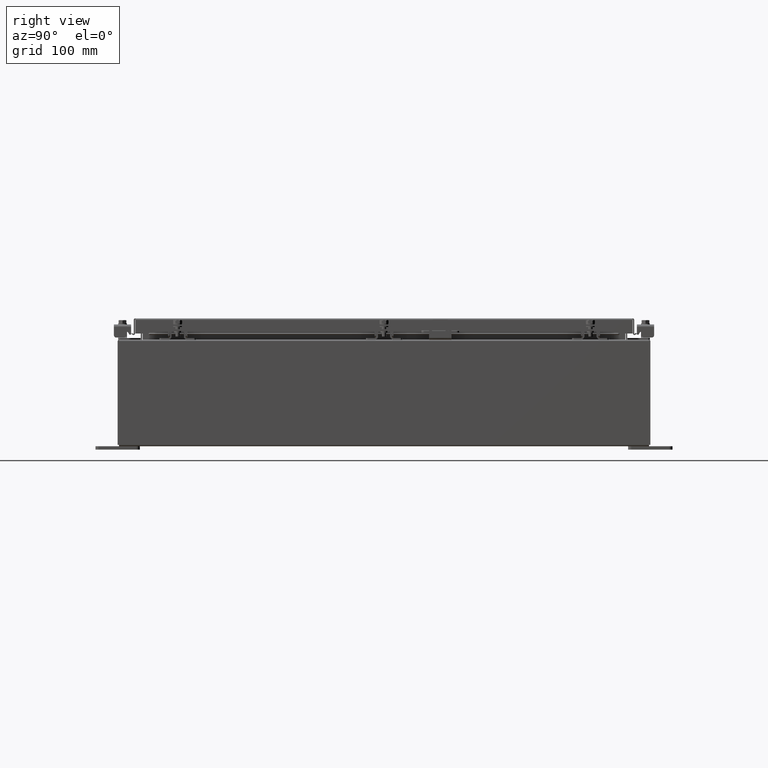
[diagram: clean part render]
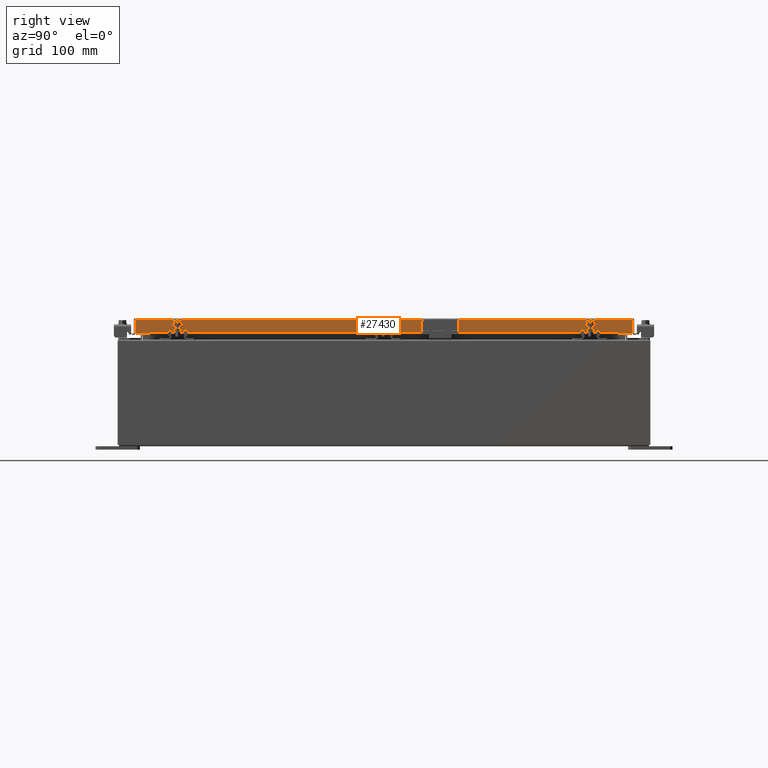
[diagram: same view with one face highlighted and labeled with its STEP entity id]
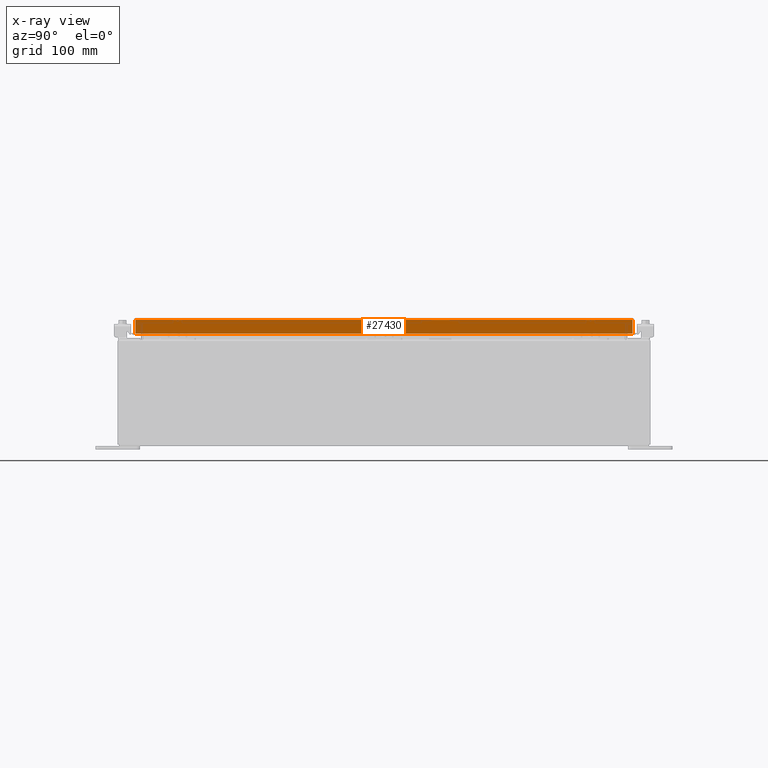
[diagram: x-ray of the same camera — body ghosted, the highlighted face saturated]
A machine part, right view. The second image highlights one B-rep face of the part: STEP entity #27430.
The next image is the same camera in x-ray: the body ghosted, the highlighted face saturated — about 0% of this face is hidden behind the body in this view.
In plain terms, the highlighted planar face has unit normal (1, 0, 0).
Its self-contained STEP definition (entity closure, byte-faithful):
#696 = CARTESIAN_POINT ( 'NONE',  ( 11.07799999999999400, 13.25515786437626500, -0.8500000000000018700 ) ) ;
#1378 = VECTOR ( 'NONE', #7902, 39.37007874015748100 ) ;
#1818 = CARTESIAN_POINT ( 'NONE',  ( 11.07799999999999900, 0.0000000000000000000, -0.08770000000000007000 ) ) ;
#1896 = EDGE_CURVE ( 'NONE', #33273, #14199, #29685, .T. ) ;
#2453 = VERTEX_POINT ( 'NONE', #23909 ) ;
#5455 = VECTOR ( 'NONE', #8894, 39.37007874015748100 ) ;
#5746 = LINE ( 'NONE', #1818, #19282 ) ;
#6952 = DIRECTION ( 'NONE',  ( 1.000000000000000000, 0.0000000000000000000, 2.818880942772360100E-015 ) ) ;
#7334 = VECTOR ( 'NONE', #28880, 39.37007874015748100 ) ;
#7661 = DIRECTION ( 'NONE',  ( 0.0000000000000000000, -1.000000000000000000, 0.0000000000000000000 ) ) ;
#7869 = VERTEX_POINT ( 'NONE', #696 ) ;
#7902 = DIRECTION ( 'NONE',  ( -2.818880942772360100E-015, -6.982962677686265900E-015, 1.000000000000000000 ) ) ;
#8547 = EDGE_CURVE ( 'NONE', #2453, #14199, #5746, .T. ) ;
#8894 = DIRECTION ( 'NONE',  ( 0.0000000000000000000, -1.000000000000000000, 0.0000000000000000000 ) ) ;
#9760 = DIRECTION ( 'NONE',  ( -2.818880942772360100E-015, -6.982962677686265900E-015, 1.000000000000000000 ) ) ;
#11811 = EDGE_CURVE ( 'NONE', #17798, #7869, #14991, .T. ) ;
#12252 = EDGE_CURVE ( 'NONE', #17798, #2453, #24440, .T. ) ;
#13162 = LINE ( 'NONE', #26210, #5455 ) ;
#13598 = CARTESIAN_POINT ( 'NONE',  ( 11.07799999999999900, -14.00515786437626900, -0.07469999999999978000 ) ) ;
#14199 = VERTEX_POINT ( 'NONE', #24104 ) ;
#14991 = LINE ( 'NONE', #25987, #7334 ) ;
#16953 = CARTESIAN_POINT ( 'NONE',  ( 11.07800000000000300, -14.09399999999999900, -0.8499999999999996400 ) ) ;
#16980 = CARTESIAN_POINT ( 'NONE',  ( 11.07799999999999400, -13.25515786437626400, -0.8500000000000018700 ) ) ;
#17532 = ORIENTED_EDGE ( 'NONE', *, *, #1896, .F. ) ;
#17798 = VERTEX_POINT ( 'NONE', #26775 ) ;
#18516 = ORIENTED_EDGE ( 'NONE', *, *, #11811, .F. ) ;
#19091 = ORIENTED_EDGE ( 'NONE', *, *, #8547, .T. ) ;
#19282 = VECTOR ( 'NONE', #7661, 39.37007874015748100 ) ;
#19634 = FACE_OUTER_BOUND ( 'NONE', #32806, .T. ) ;
#20089 = DIRECTION ( 'NONE',  ( 0.0000000000000000000, -1.000000000000000000, 0.0000000000000000000 ) ) ;
#20934 = VECTOR ( 'NONE', #20089, 39.37007874015748100 ) ;
#21314 = CARTESIAN_POINT ( 'NONE',  ( 11.07799999999999900, 0.0000000000000000000, 3.148837674004379000E-014 ) ) ;
#22073 = ORIENTED_EDGE ( 'NONE', *, *, #12252, .T. ) ;
#22182 = AXIS2_PLACEMENT_3D ( 'NONE', #21314, #6952, #27146 ) ;
#23909 = CARTESIAN_POINT ( 'NONE',  ( 11.07799999999999900, 14.00515786437626500, -0.08770000000000007000 ) ) ;
#24104 = CARTESIAN_POINT ( 'NONE',  ( 11.07799999999999900, -14.00515786437626900, -0.08770000000000007000 ) ) ;
#24440 = LINE ( 'NONE', #25202, #1378 ) ;
#25202 = CARTESIAN_POINT ( 'NONE',  ( 11.07799999999999900, 14.00515786437626900, 1.292858714020875700E-013 ) ) ;
#25527 = ORIENTED_EDGE ( 'NONE', *, *, #31752, .F. ) ;
#25987 = CARTESIAN_POINT ( 'NONE',  ( 11.07800000000000300, -14.09399999999999900, -0.8499999999999996400 ) ) ;
#26210 = CARTESIAN_POINT ( 'NONE',  ( 11.07799999999999400, 13.25515786437627200, -0.8500000000000018700 ) ) ;
#26775 = CARTESIAN_POINT ( 'NONE',  ( 11.07800000000000300, 14.00515786437627200, -0.8499999999999996400 ) ) ;
#27022 = PLANE ( 'NONE',  #22182 ) ;
#27146 = DIRECTION ( 'NONE',  ( 2.818880942772360100E-015, 0.0000000000000000000, -1.000000000000000000 ) ) ;
#27430 = ADVANCED_FACE ( 'NONE', ( #19634 ), #27022, .T. ) ;
#28774 = VECTOR ( 'NONE', #9760, 39.37007874015748100 ) ;
#28880 = DIRECTION ( 'NONE',  ( 0.0000000000000000000, -1.000000000000000000, 0.0000000000000000000 ) ) ;
#29685 = LINE ( 'NONE', #13598, #28774 ) ;
#31752 = EDGE_CURVE ( 'NONE', #37148, #33273, #37241, .T. ) ;
#32806 = EDGE_LOOP ( 'NONE', ( #17532, #25527, #33640, #18516, #22073, #19091 ) ) ;
#33273 = VERTEX_POINT ( 'NONE', #36236 ) ;
#33640 = ORIENTED_EDGE ( 'NONE', *, *, #35501, .F. ) ;
#35501 = EDGE_CURVE ( 'NONE', #7869, #37148, #13162, .T. ) ;
#36236 = CARTESIAN_POINT ( 'NONE',  ( 11.07800000000000300, -14.00515786437626400, -0.8499999999999996400 ) ) ;
#37148 = VERTEX_POINT ( 'NONE', #16980 ) ;
#37241 = LINE ( 'NONE', #16953, #20934 ) ;